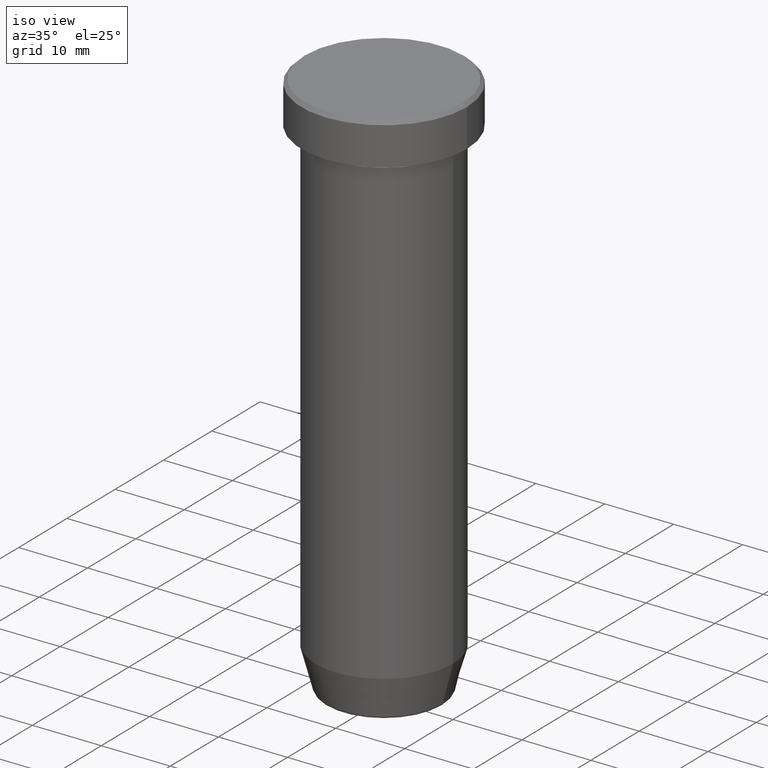
[diagram: clean part render]
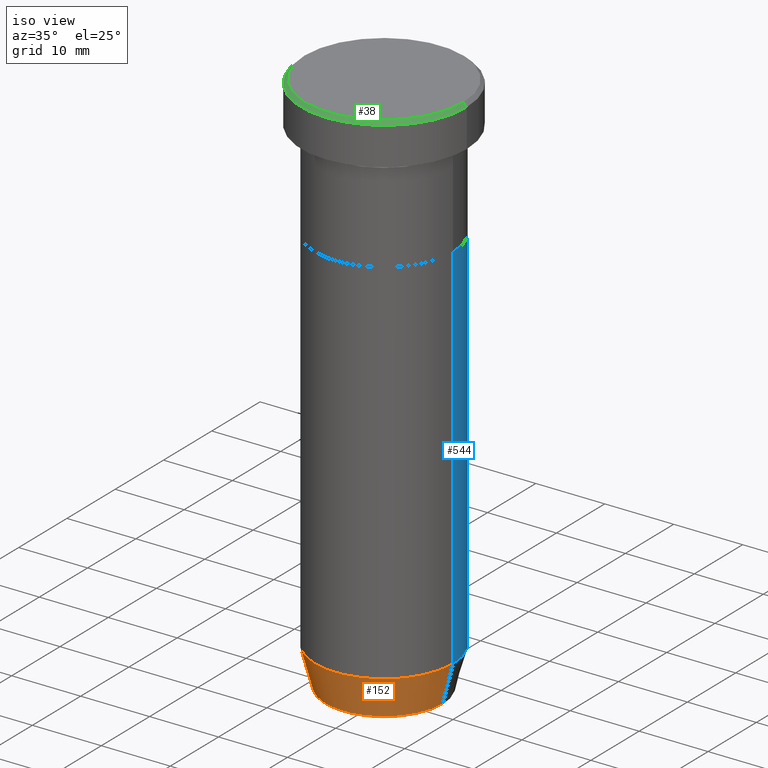
[diagram: same view with three faces highlighted in distinct colors, each labeled with its STEP entity id]
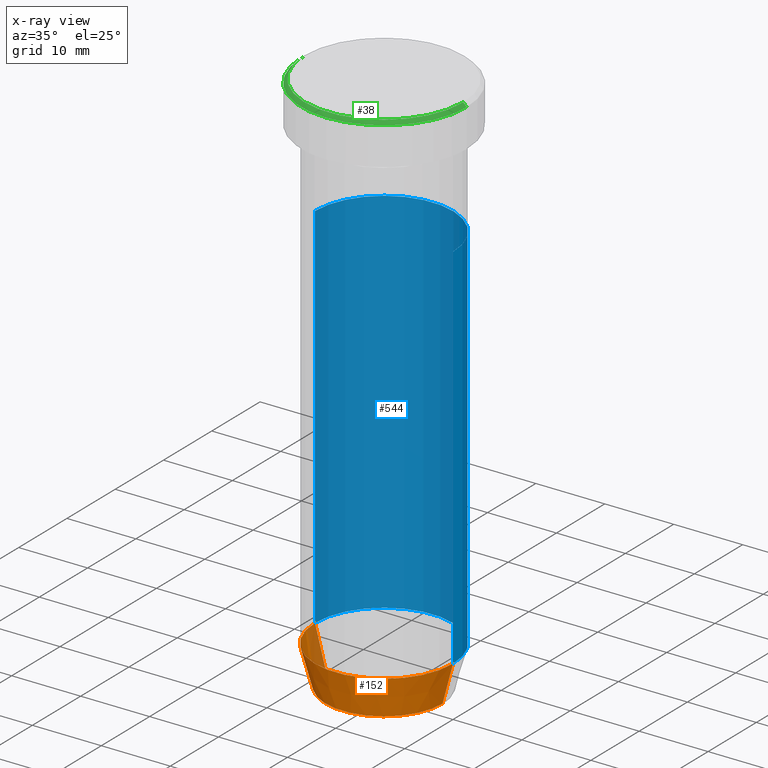
[diagram: x-ray of the same camera — body ghosted, the three highlighted faces saturated]
A machine part, iso view with three faces highlighted in distinct colors.
The next image is the same camera in x-ray (body ghosted, the three faces saturated) — at least one of them is partly hidden behind the body in this view.
Their STEP definitions:

[orange] entity #152 — the highlighted conical surface has half-angle 15 deg.
#10 = CARTESIAN_POINT ( 'NONE',  ( -9.999999999999998224, 1.224646799147353059E-15, -74.00000000000000000 ) ) ;
#42 = DIRECTION ( 'NONE',  ( -0.000000000000000000, -0.000000000000000000, 1.000000000000000000 ) ) ;
#58 = EDGE_CURVE ( 'NONE', #580, #436, #470, .T. ) ;
#70 = DIRECTION ( 'NONE',  ( 1.000000000000000000, 0.000000000000000000, 0.000000000000000000 ) ) ;
#87 = CARTESIAN_POINT ( 'NONE',  ( 0.000000000000000000, 0.000000000000000000, -80.00000000000000000 ) ) ;
#99 = CARTESIAN_POINT ( 'NONE',  ( 0.000000000000000000, 0.000000000000000000, -79.62940952255127058 ) ) ;
#101 = CARTESIAN_POINT ( 'NONE',  ( 9.999999999999998224, 0.000000000000000000, -74.00000000000000000 ) ) ;
#102 = EDGE_CURVE ( 'NONE', #115, #580, #186, .T. ) ;
#115 = VERTEX_POINT ( 'NONE', #372 ) ;
#143 = AXIS2_PLACEMENT_3D ( 'NONE', #99, #383, #179 ) ;
#152 = ADVANCED_FACE ( 'NONE', ( #493 ), #338, .T. ) ;
#179 = DIRECTION ( 'NONE',  ( -1.000000000000000000, 0.000000000000000000, 0.000000000000000000 ) ) ;
#182 = VECTOR ( 'NONE', #229, 1000.000000000000000 ) ;
#186 = LINE ( 'NONE', #464, #192 ) ;
#192 = VECTOR ( 'NONE', #424, 1000.000000000000000 ) ;
#195 = ORIENTED_EDGE ( 'NONE', *, *, #58, .F. ) ;
#203 = AXIS2_PLACEMENT_3D ( 'NONE', #87, #273, #70 ) ;
#214 = ORIENTED_EDGE ( 'NONE', *, *, #102, .F. ) ;
#229 = DIRECTION ( 'NONE',  ( 0.2588190451025209060, 0.000000000000000000, 0.9659258262890682012 ) ) ;
#235 = CARTESIAN_POINT ( 'NONE',  ( 8.392304845413260495, 0.000000000000000000, -80.00000000000000000 ) ) ;
#273 = DIRECTION ( 'NONE',  ( -0.000000000000000000, -0.000000000000000000, 1.000000000000000000 ) ) ;
#276 = CIRCLE ( 'NONE', #143, 8.491604264568316296 ) ;
#280 = CARTESIAN_POINT ( 'NONE',  ( 8.491604264568316296, 0.000000000000000000, -79.62940952255127058 ) ) ;
#336 = AXIS2_PLACEMENT_3D ( 'NONE', #445, #42, #490 ) ;
#338 = CONICAL_SURFACE ( 'NONE', #203, 8.392304845413260495, 0.2617993877991495744 ) ;
#339 = ORIENTED_EDGE ( 'NONE', *, *, #453, .T. ) ;
#372 = CARTESIAN_POINT ( 'NONE',  ( -8.491604264568316296, 1.132284198685156584E-15, -79.62940952255127058 ) ) ;
#381 = LINE ( 'NONE', #235, #182 ) ;
#383 = DIRECTION ( 'NONE',  ( -0.000000000000000000, -0.000000000000000000, 1.000000000000000000 ) ) ;
#424 = DIRECTION ( 'NONE',  ( -0.2588190451025209060, 3.169619151431766790E-17, 0.9659258262890682012 ) ) ;
#436 = VERTEX_POINT ( 'NONE', #101 ) ;
#445 = CARTESIAN_POINT ( 'NONE',  ( 0.000000000000000000, 0.000000000000000000, -74.00000000000000000 ) ) ;
#453 = EDGE_CURVE ( 'NONE', #115, #517, #276, .T. ) ;
#464 = CARTESIAN_POINT ( 'NONE',  ( -8.392304845413260495, 1.027760926640417114E-15, -80.00000000000000000 ) ) ;
#470 = CIRCLE ( 'NONE', #336, 9.999999999999998224 ) ;
#490 = DIRECTION ( 'NONE',  ( 1.000000000000000000, 0.000000000000000000, 0.000000000000000000 ) ) ;
#493 = FACE_OUTER_BOUND ( 'NONE', #496, .T. ) ;
#496 = EDGE_LOOP ( 'NONE', ( #214, #339, #538, #195 ) ) ;
#517 = VERTEX_POINT ( 'NONE', #280 ) ;
#538 = ORIENTED_EDGE ( 'NONE', *, *, #576, .T. ) ;
#576 = EDGE_CURVE ( 'NONE', #517, #436, #381, .T. ) ;
#580 = VERTEX_POINT ( 'NONE', #10 ) ;

[blue] entity #544 — the highlighted cylindrical surface (partial cylindrical patch) has radius 10 mm, axis along (-0, -0, 1).
#3 = CARTESIAN_POINT ( 'NONE',  ( -9.999999999999998224, 1.224646799147353059E-15, 0.000000000000000000 ) ) ;
#10 = CARTESIAN_POINT ( 'NONE',  ( -9.999999999999998224, 1.224646799147353059E-15, -74.00000000000000000 ) ) ;
#44 = VECTOR ( 'NONE', #540, 1000.000000000000000 ) ;
#46 = AXIS2_PLACEMENT_3D ( 'NONE', #506, #232, #317 ) ;
#51 = FACE_OUTER_BOUND ( 'NONE', #555, .T. ) ;
#52 = DIRECTION ( 'NONE',  ( 1.000000000000000000, 0.000000000000000000, 0.000000000000000000 ) ) ;
#101 = CARTESIAN_POINT ( 'NONE',  ( 9.999999999999998224, 0.000000000000000000, -74.00000000000000000 ) ) ;
#127 = CARTESIAN_POINT ( 'NONE',  ( 9.999999999999998224, 0.000000000000000000, 0.000000000000000000 ) ) ;
#131 = CIRCLE ( 'NONE', #419, 9.999999999999998224 ) ;
#141 = DIRECTION ( 'NONE',  ( -0.000000000000000000, -0.000000000000000000, 1.000000000000000000 ) ) ;
#155 = ORIENTED_EDGE ( 'NONE', *, *, #428, .T. ) ;
#165 = LINE ( 'NONE', #127, #44 ) ;
#232 = DIRECTION ( 'NONE',  ( -0.000000000000000000, -0.000000000000000000, 1.000000000000000000 ) ) ;
#238 = CARTESIAN_POINT ( 'NONE',  ( 0.000000000000000000, 0.000000000000000000, -74.00000000000000000 ) ) ;
#253 = AXIS2_PLACEMENT_3D ( 'NONE', #427, #277, #52 ) ;
#268 = CARTESIAN_POINT ( 'NONE',  ( -10.00000000000000000, 1.224646799147353256E-15, -20.00000000000000000 ) ) ;
#277 = DIRECTION ( 'NONE',  ( -0.000000000000000000, -0.000000000000000000, 1.000000000000000000 ) ) ;
#282 = LINE ( 'NONE', #3, #472 ) ;
#317 = DIRECTION ( 'NONE',  ( 1.000000000000000000, 0.000000000000000000, 0.000000000000000000 ) ) ;
#322 = EDGE_CURVE ( 'NONE', #390, #400, #512, .T. ) ;
#377 = CYLINDRICAL_SURFACE ( 'NONE', #46, 9.999999999999998224 ) ;
#384 = ORIENTED_EDGE ( 'NONE', *, *, #395, .T. ) ;
#387 = EDGE_CURVE ( 'NONE', #436, #390, #165, .T. ) ;
#390 = VERTEX_POINT ( 'NONE', #442 ) ;
#395 = EDGE_CURVE ( 'NONE', #436, #580, #131, .T. ) ;
#400 = VERTEX_POINT ( 'NONE', #268 ) ;
#419 = AXIS2_PLACEMENT_3D ( 'NONE', #238, #473, #583 ) ;
#427 = CARTESIAN_POINT ( 'NONE',  ( 0.000000000000000000, 0.000000000000000000, -20.00000000000000000 ) ) ;
#428 = EDGE_CURVE ( 'NONE', #580, #400, #282, .T. ) ;
#436 = VERTEX_POINT ( 'NONE', #101 ) ;
#442 = CARTESIAN_POINT ( 'NONE',  ( 10.00000000000000000, 0.000000000000000000, -20.00000000000000000 ) ) ;
#472 = VECTOR ( 'NONE', #141, 1000.000000000000000 ) ;
#473 = DIRECTION ( 'NONE',  ( -0.000000000000000000, -0.000000000000000000, 1.000000000000000000 ) ) ;
#506 = CARTESIAN_POINT ( 'NONE',  ( 0.000000000000000000, 0.000000000000000000, 0.000000000000000000 ) ) ;
#512 = CIRCLE ( 'NONE', #253, 10.00000000000000000 ) ;
#526 = ORIENTED_EDGE ( 'NONE', *, *, #322, .F. ) ;
#540 = DIRECTION ( 'NONE',  ( -0.000000000000000000, -0.000000000000000000, 1.000000000000000000 ) ) ;
#544 = ADVANCED_FACE ( 'NONE', ( #51 ), #377, .T. ) ;
#555 = EDGE_LOOP ( 'NONE', ( #384, #155, #526, #590 ) ) ;
#580 = VERTEX_POINT ( 'NONE', #10 ) ;
#583 = DIRECTION ( 'NONE',  ( 1.000000000000000000, 0.000000000000000000, 0.000000000000000000 ) ) ;
#590 = ORIENTED_EDGE ( 'NONE', *, *, #387, .F. ) ;

[green] entity #38 — the highlighted conical surface has half-angle 45 deg.
#20 = EDGE_CURVE ( 'NONE', #126, #492, #188, .T. ) ;
#38 = ADVANCED_FACE ( 'NONE', ( #340 ), #320, .T. ) ;
#40 = DIRECTION ( 'NONE',  ( 0.000000000000000000, 0.000000000000000000, -1.000000000000000000 ) ) ;
#57 = EDGE_LOOP ( 'NONE', ( #359, #148, #197, #357 ) ) ;
#126 = VERTEX_POINT ( 'NONE', #562 ) ;
#148 = ORIENTED_EDGE ( 'NONE', *, *, #309, .F. ) ;
#188 = CIRCLE ( 'NONE', #243, 12.00000000000000000 ) ;
#197 = ORIENTED_EDGE ( 'NONE', *, *, #329, .T. ) ;
#205 = DIRECTION ( 'NONE',  ( 0.000000000000000000, 0.000000000000000000, -1.000000000000000000 ) ) ;
#231 = DIRECTION ( 'NONE',  ( -0.7071067811865451302, 0.000000000000000000, -0.7071067811865500152 ) ) ;
#243 = AXIS2_PLACEMENT_3D ( 'NONE', #263, #40, #567 ) ;
#244 = DIRECTION ( 'NONE',  ( 1.000000000000000000, 0.000000000000000000, 0.000000000000000000 ) ) ;
#246 = VERTEX_POINT ( 'NONE', #522 ) ;
#263 = CARTESIAN_POINT ( 'NONE',  ( 0.000000000000000000, 0.000000000000000000, -0.5000000000000056621 ) ) ;
#309 = EDGE_CURVE ( 'NONE', #434, #246, #312, .T. ) ;
#312 = CIRCLE ( 'NONE', #323, 11.49999999999999822 ) ;
#320 = CONICAL_SURFACE ( 'NONE', #460, 11.49999999999999822, 0.7853981633974447263 ) ;
#321 = CARTESIAN_POINT ( 'NONE',  ( -11.49999999999999822, 0.000000000000000000, 0.000000000000000000 ) ) ;
#323 = AXIS2_PLACEMENT_3D ( 'NONE', #510, #333, #244 ) ;
#329 = EDGE_CURVE ( 'NONE', #434, #492, #458, .T. ) ;
#333 = DIRECTION ( 'NONE',  ( -0.000000000000000000, -0.000000000000000000, 1.000000000000000000 ) ) ;
#340 = FACE_OUTER_BOUND ( 'NONE', #57, .T. ) ;
#347 = EDGE_CURVE ( 'NONE', #246, #126, #545, .T. ) ;
#357 = ORIENTED_EDGE ( 'NONE', *, *, #20, .F. ) ;
#359 = ORIENTED_EDGE ( 'NONE', *, *, #347, .F. ) ;
#362 = DIRECTION ( 'NONE',  ( 0.7071067811865451302, 8.659560562354903276E-17, -0.7071067811865500152 ) ) ;
#406 = CARTESIAN_POINT ( 'NONE',  ( -12.00000000000000000, 1.469576158976823947E-15, -0.5000000000000056621 ) ) ;
#420 = CARTESIAN_POINT ( 'NONE',  ( -11.49999999999999822, 0.000000000000000000, 0.000000000000000000 ) ) ;
#434 = VERTEX_POINT ( 'NONE', #321 ) ;
#456 = CARTESIAN_POINT ( 'NONE',  ( 11.49999999999999822, 1.408343819019455979E-15, 0.000000000000000000 ) ) ;
#458 = LINE ( 'NONE', #420, #597 ) ;
#460 = AXIS2_PLACEMENT_3D ( 'NONE', #475, #205, #572 ) ;
#475 = CARTESIAN_POINT ( 'NONE',  ( 0.000000000000000000, 0.000000000000000000, 0.000000000000000000 ) ) ;
#492 = VERTEX_POINT ( 'NONE', #406 ) ;
#510 = CARTESIAN_POINT ( 'NONE',  ( 0.000000000000000000, 0.000000000000000000, 0.000000000000000000 ) ) ;
#516 = VECTOR ( 'NONE', #362, 1000.000000000000114 ) ;
#522 = CARTESIAN_POINT ( 'NONE',  ( 11.49999999999999822, 1.438959988998139963E-15, 0.000000000000000000 ) ) ;
#545 = LINE ( 'NONE', #456, #516 ) ;
#562 = CARTESIAN_POINT ( 'NONE',  ( 12.00000000000000000, 0.000000000000000000, -0.5000000000000056621 ) ) ;
#567 = DIRECTION ( 'NONE',  ( 1.000000000000000000, 0.000000000000000000, 0.000000000000000000 ) ) ;
#572 = DIRECTION ( 'NONE',  ( -1.000000000000000000, 0.000000000000000000, 0.000000000000000000 ) ) ;
#597 = VECTOR ( 'NONE', #231, 1000.000000000000114 ) ;